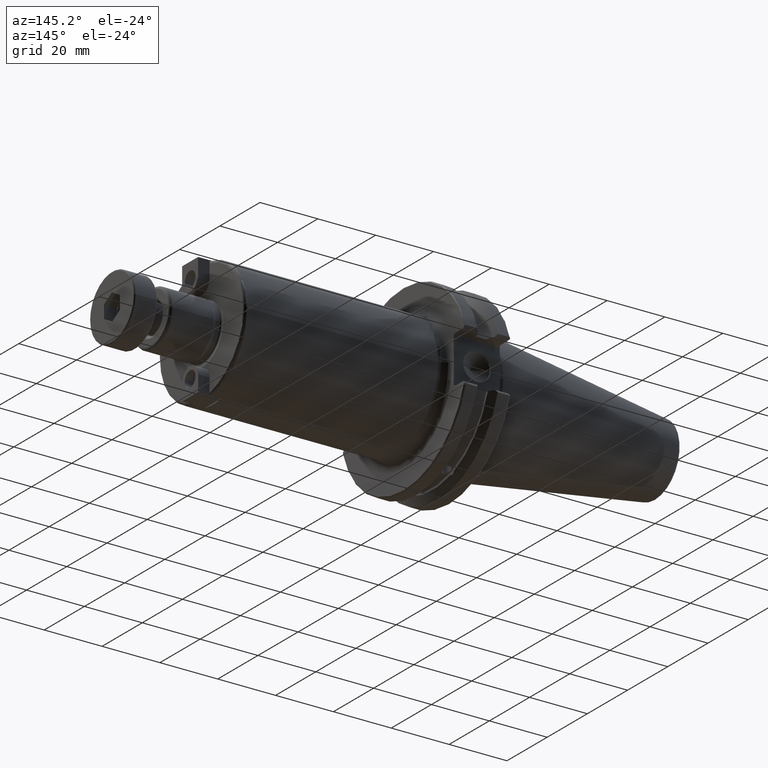
[diagram: clean part render]
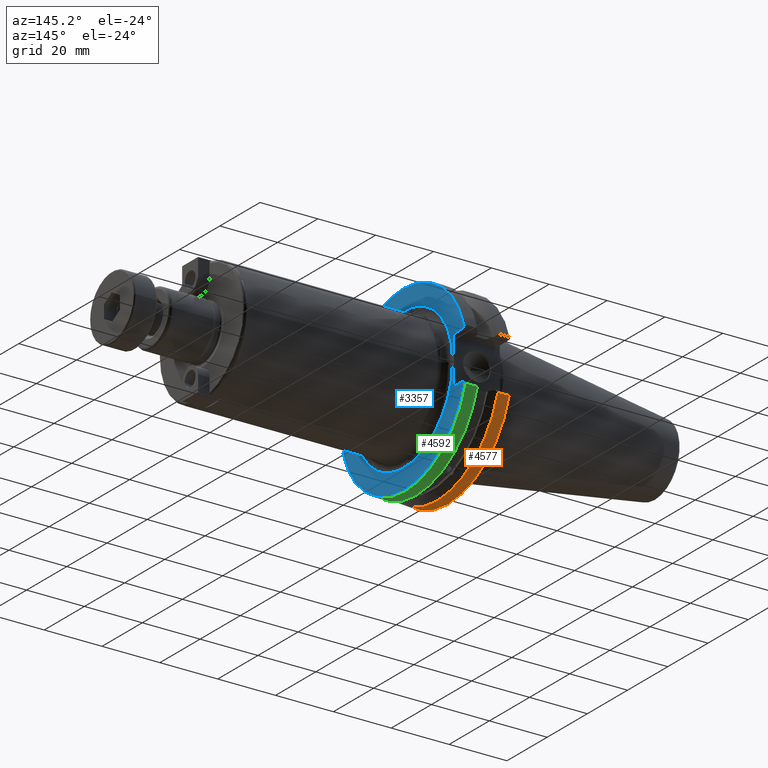
[diagram: same view with three faces highlighted in distinct colors, each labeled with its STEP entity id]
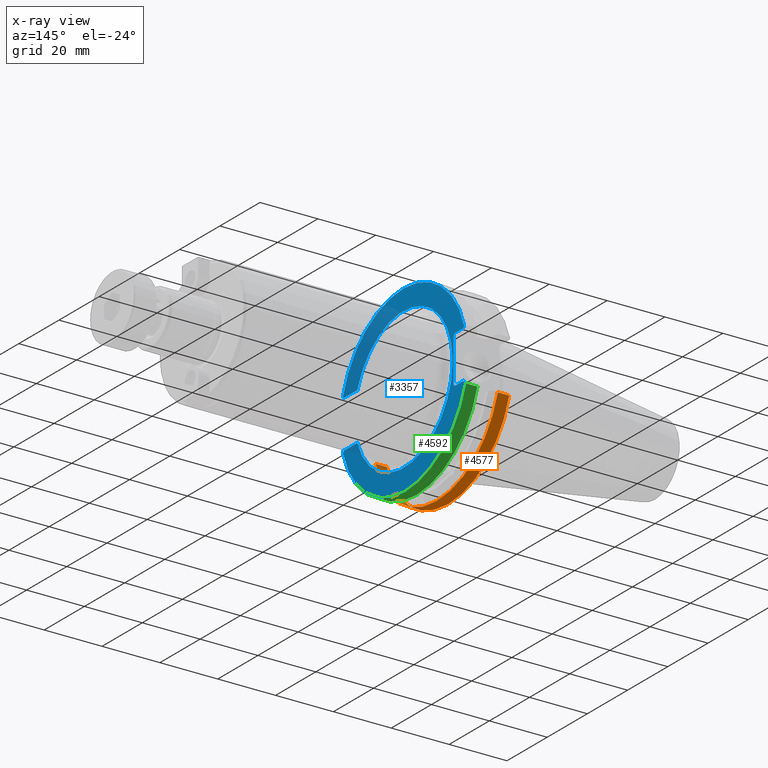
[diagram: x-ray of the same camera — body ghosted, the three highlighted faces saturated]
A machine part, auxiliary view with three faces highlighted in distinct colors.
The next image is the same camera in x-ray (body ghosted, the three faces saturated) — at least one of them is partly hidden behind the body in this view.
Their STEP definitions:

[orange] entity #4577 — the highlighted cylindrical surface (partial cylindrical patch) has radius 31.75 mm, axis along (1, 0, 0).
#561=CARTESIAN_POINT('',(2.995272033465E-1,1.197670401482E0,
-3.578904991948E-1));
#567=CARTESIAN_POINT('',(2.995272033465E-1,0.E0,0.E0));
#568=DIRECTION('',(-1.E0,0.E0,0.E0));
#569=DIRECTION('',(0.E0,9.581363211856E-1,-2.863123993559E-1));
#570=AXIS2_PLACEMENT_3D('',#567,#568,#569);
#576=CARTESIAN_POINT('',(2.995272033465E-1,-1.197670401482E0,
-3.578904991948E-1));
#1598=CARTESIAN_POINT('',(1.446850393701E-1,0.E0,0.E0));
#1599=DIRECTION('',(1.E0,0.E0,0.E0));
#1600=DIRECTION('',(0.E0,-9.581363211856E-1,-2.863123993559E-1));
#1601=AXIS2_PLACEMENT_3D('',#1598,#1599,#1600);
#1629=DIRECTION('',(-1.E0,0.E0,0.E0));
#1630=VECTOR('',#1629,1.548421639764E-1);
#1631=CARTESIAN_POINT('',(2.995272033465E-1,-1.197670401482E0,
-3.578904991948E-1));
#1632=LINE('',#1631,#1630);
#1633=DIRECTION('',(1.E0,0.E0,0.E0));
#1634=VECTOR('',#1633,1.548421639764E-1);
#1635=CARTESIAN_POINT('',(1.446850393701E-1,1.197670401482E0,
-3.578904991948E-1));
#1636=LINE('',#1635,#1634);
#2222=VERTEX_POINT('',#561);
#2225=VERTEX_POINT('',#576);
#2276=CARTESIAN_POINT('',(1.446850393701E-1,1.197670401482E0,
-3.578904991948E-1));
#2277=VERTEX_POINT('',#2276);
#2278=CARTESIAN_POINT('',(1.446850393701E-1,-1.197670401482E0,
-3.578904991948E-1));
#2279=VERTEX_POINT('',#2278);
#4565=CARTESIAN_POINT('',(0.E0,0.E0,0.E0));
#4566=DIRECTION('',(1.E0,0.E0,0.E0));
#4567=DIRECTION('',(0.E0,0.E0,1.E0));
#4568=AXIS2_PLACEMENT_3D('',#4565,#4566,#4567);
#4569=CYLINDRICAL_SURFACE('',#4568,1.25E0);
#4570=ORIENTED_EDGE('',*,*,#4532,.F.);
#4572=ORIENTED_EDGE('',*,*,#4571,.F.);
#4573=ORIENTED_EDGE('',*,*,#3206,.F.);
#4574=ORIENTED_EDGE('',*,*,#4545,.F.);
#4575=EDGE_LOOP('',(#4570,#4572,#4573,#4574));
#4576=FACE_OUTER_BOUND('',#4575,.F.);
#4577=ADVANCED_FACE('',(#4576),#4569,.T.);
#571=CIRCLE('',#570,1.25E0);
#1602=CIRCLE('',#1601,1.25E0);
#3206=EDGE_CURVE('',#2222,#2225,#571,.T.);
#4532=EDGE_CURVE('',#2279,#2277,#1602,.T.);
#4545=EDGE_CURVE('',#2277,#2222,#1636,.T.);
#4571=EDGE_CURVE('',#2225,#2279,#1632,.T.);

[blue] entity #3357 — the highlighted planar face has unit normal (-1, 0, 0).
#674=DIRECTION('',(0.E0,1.E0,0.E0));
#675=VECTOR('',#674,2.618162508981E-1);
#676=CARTESIAN_POINT('',(7.509842519685E-1,-1.171265069796E0,
-3.224409448819E-1));
#677=LINE('',#676,#675);
#694=CARTESIAN_POINT('',(7.509842519685E-1,0.E0,0.E0));
#695=DIRECTION('',(1.E0,0.E0,0.E0));
#696=DIRECTION('',(0.E0,-9.429949431790E-1,-3.328070569247E-1));
#697=AXIS2_PLACEMENT_3D('',#694,#695,#696);
#699=CARTESIAN_POINT('',(7.509842519685E-1,0.E0,0.E0));
#700=DIRECTION('',(1.E0,0.E0,0.E0));
#701=DIRECTION('',(0.E0,1.E0,0.E0));
#702=AXIS2_PLACEMENT_3D('',#699,#700,#701);
#1182=DIRECTION('',(0.E0,-7.080677912790E-1,7.061444632320E-1));
#1183=VECTOR('',#1182,3.223760960722E-3);
#1184=CARTESIAN_POINT('',(7.509842519685E-1,-9.071661775946E-1,
3.201645039287E-1));
#1185=LINE('',#1184,#1183);
#1202=DIRECTION('',(0.E0,1.E0,0.E0));
#1203=VECTOR('',#1202,2.618162508981E-1);
#1204=CARTESIAN_POINT('',(7.509842519685E-1,-1.171265069796E0,
3.224409448819E-1));
#1205=LINE('',#1204,#1203);
#1280=DIRECTION('',(0.E0,0.E0,-1.E0));
#1281=VECTOR('',#1280,6.055118110236E-1);
#1282=CARTESIAN_POINT('',(7.509842519685E-1,9.842519685039E-1,
3.027559055118E-1));
#1283=LINE('',#1282,#1281);
#1322=DIRECTION('',(0.E0,7.071067811865E-1,7.071067811865E-1));
#1323=VECTOR('',#1322,2.783884965301E-2);
#1324=CARTESIAN_POINT('',(7.509842519685E-1,9.842519685039E-1,
3.027559055118E-1));
#1325=LINE('',#1324,#1323);
#1330=DIRECTION('',(0.E0,1.E0,0.E0));
#1331=VECTOR('',#1330,1.673280619218E-1);
#1332=CARTESIAN_POINT('',(7.509842519685E-1,1.003937007874E0,
3.224409448819E-1));
#1333=LINE('',#1332,#1331);
#1350=DIRECTION('',(0.E0,5.973640433790E-1,8.019701987468E-1));
#1351=VECTOR('',#1350,2.743060784158E-2);
#1352=CARTESIAN_POINT('',(7.509842519685E-1,1.171265069796E0,
3.224409448819E-1));
#1353=LINE('',#1352,#1351);
#1361=CARTESIAN_POINT('',(7.509842519685E-1,0.E0,0.E0));
#1362=DIRECTION('',(1.E0,0.E0,0.E0));
#1363=DIRECTION('',(0.E0,9.604246720989E-1,2.785398521286E-1));
#1364=AXIS2_PLACEMENT_3D('',#1361,#1362,#1363);
#1383=DIRECTION('',(0.E0,5.973640433790E-1,-8.019701987468E-1));
#1384=VECTOR('',#1383,2.743060784159E-2);
#1385=CARTESIAN_POINT('',(7.509842519685E-1,-1.187651128608E0,
3.444394749044E-1));
#1386=LINE('',#1385,#1384);
#1545=DIRECTION('',(0.E0,1.E0,0.E0));
#1546=VECTOR('',#1545,1.673280619218E-1);
#1547=CARTESIAN_POINT('',(7.509842519685E-1,1.003937007874E0,
-3.224409448819E-1));
#1548=LINE('',#1547,#1546);
#1565=DIRECTION('',(0.E0,7.071067811865E-1,-7.071067811865E-1));
#1566=VECTOR('',#1565,2.783884965301E-2);
#1567=CARTESIAN_POINT('',(7.509842519685E-1,9.842519685039E-1,
-3.027559055118E-1));
#1568=LINE('',#1567,#1566);
#1697=DIRECTION('',(0.E0,-7.075623190160E-1,-7.066509496977E-1));
#1698=VECTOR('',#1697,3.227333670067E-3);
#1699=CARTESIAN_POINT('',(7.509842519685E-1,-9.071652792018E-1,
-3.201603464789E-1));
#1700=LINE('',#1699,#1698);
#1710=CARTESIAN_POINT('',(7.509842519685E-1,0.E0,0.E0));
#1711=DIRECTION('',(1.E0,0.E0,0.E0));
#1712=DIRECTION('',(0.E0,-9.604246720989E-1,-2.785398521286E-1));
#1713=AXIS2_PLACEMENT_3D('',#1710,#1711,#1712);
#1732=DIRECTION('',(0.E0,-5.973640433790E-1,8.019701987468E-1));
#1733=VECTOR('',#1732,2.743060784159E-2);
#1734=CARTESIAN_POINT('',(7.509842519685E-1,1.187651128608E0,
-3.444394749044E-1));
#1735=LINE('',#1734,#1733);
#1743=DIRECTION('',(0.E0,-5.973640433789E-1,-8.019701987468E-1));
#1744=VECTOR('',#1743,2.743060784159E-2);
#1745=CARTESIAN_POINT('',(7.509842519685E-1,-1.171265069796E0,
-3.224409448819E-1));
#1746=LINE('',#1745,#1744);
#2456=CARTESIAN_POINT('',(7.509842519685E-1,9.842519685039E-1,
3.027559055118E-1));
#2457=CARTESIAN_POINT('',(7.509842519685E-1,9.842519685039E-1,
-3.027559055118E-1));
#2458=VERTEX_POINT('',#2456);
#2459=VERTEX_POINT('',#2457);
#2460=CARTESIAN_POINT('',(7.509842519685E-1,1.003937007874E0,
3.224409448819E-1));
#2461=CARTESIAN_POINT('',(7.509842519685E-1,1.171265069796E0,
3.224409448819E-1));
#2462=VERTEX_POINT('',#2460);
#2463=VERTEX_POINT('',#2461);
#2464=CARTESIAN_POINT('',(7.509842519685E-1,1.003937007874E0,
-3.224409448819E-1));
#2465=CARTESIAN_POINT('',(7.509842519685E-1,1.171265069796E0,
-3.224409448819E-1));
#2466=VERTEX_POINT('',#2464);
#2467=VERTEX_POINT('',#2465);
#2468=CARTESIAN_POINT('',(7.509842519685E-1,-1.171265069796E0,
3.224409448819E-1));
#2469=CARTESIAN_POINT('',(7.509842519685E-1,-9.094488188976E-1,
3.224409448819E-1));
#2470=VERTEX_POINT('',#2468);
#2471=VERTEX_POINT('',#2469);
#2472=CARTESIAN_POINT('',(7.509842519685E-1,-1.171265069796E0,
-3.224409448819E-1));
#2473=CARTESIAN_POINT('',(7.509842519685E-1,-9.094488188976E-1,
-3.224409448819E-1));
#2474=VERTEX_POINT('',#2472);
#2475=VERTEX_POINT('',#2473);
#2476=CARTESIAN_POINT('',(7.509842519685E-1,1.187651128608E0,
3.444394749044E-1));
#2477=VERTEX_POINT('',#2476);
#2478=CARTESIAN_POINT('',(7.509842519685E-1,1.187651128608E0,
-3.444394749044E-1));
#2479=VERTEX_POINT('',#2478);
#2480=CARTESIAN_POINT('',(7.509842519685E-1,-1.187651128608E0,
3.444394749044E-1));
#2481=VERTEX_POINT('',#2480);
#2482=CARTESIAN_POINT('',(7.509842519685E-1,-1.187651128608E0,
-3.444394749044E-1));
#2483=VERTEX_POINT('',#2482);
#2557=CARTESIAN_POINT('',(7.509842519685E-1,-9.071611353382E-1,
-3.201603887615E-1));
#2558=CARTESIAN_POINT('',(7.509842519685E-1,9.62E-1,0.E0));
#2559=VERTEX_POINT('',#2557);
#2560=VERTEX_POINT('',#2558);
#2561=CARTESIAN_POINT('',(7.509842519685E-1,-9.071600700851E-1,
3.201634070957E-1));
#2562=VERTEX_POINT('',#2561);
#3317=CARTESIAN_POINT('',(7.509842519685E-1,-1.968503937008E0,
-1.968503937008E0));
#3318=DIRECTION('',(-1.E0,0.E0,0.E0));
#3319=DIRECTION('',(0.E0,0.E0,1.E0));
#3320=AXIS2_PLACEMENT_3D('',#3317,#3318,#3319);
#3321=PLANE('',#3320);
#3323=ORIENTED_EDGE('',*,*,#3322,.T.);
#3325=ORIENTED_EDGE('',*,*,#3324,.T.);
#3327=ORIENTED_EDGE('',*,*,#3326,.T.);
#3329=ORIENTED_EDGE('',*,*,#3328,.F.);
#3331=ORIENTED_EDGE('',*,*,#3330,.F.);
#3333=ORIENTED_EDGE('',*,*,#3332,.F.);
#3335=ORIENTED_EDGE('',*,*,#3334,.F.);
#3337=ORIENTED_EDGE('',*,*,#3336,.F.);
#3339=ORIENTED_EDGE('',*,*,#3338,.F.);
#3341=ORIENTED_EDGE('',*,*,#3340,.T.);
#3343=ORIENTED_EDGE('',*,*,#3342,.T.);
#3345=ORIENTED_EDGE('',*,*,#3344,.T.);
#3347=ORIENTED_EDGE('',*,*,#3346,.F.);
#3349=ORIENTED_EDGE('',*,*,#3348,.F.);
#3351=ORIENTED_EDGE('',*,*,#3350,.F.);
#3352=ORIENTED_EDGE('',*,*,#3297,.T.);
#3354=ORIENTED_EDGE('',*,*,#3353,.F.);
#3355=EDGE_LOOP('',(#3323,#3325,#3327,#3329,#3331,#3333,#3335,#3337,#3339,#3341,
#3343,#3345,#3347,#3349,#3351,#3352,#3354));
#3356=FACE_OUTER_BOUND('',#3355,.F.);
#3357=ADVANCED_FACE('',(#3356),#3321,.F.);
#698=CIRCLE('',#697,9.62E-1);
#703=CIRCLE('',#702,9.62E-1);
#1365=CIRCLE('',#1364,1.236589566169E0);
#1714=CIRCLE('',#1713,1.236589566169E0);
#3297=EDGE_CURVE('',#2474,#2475,#677,.T.);
#3322=EDGE_CURVE('',#2559,#2560,#698,.T.);
#3324=EDGE_CURVE('',#2560,#2562,#703,.T.);
#3326=EDGE_CURVE('',#2562,#2471,#1185,.T.);
#3328=EDGE_CURVE('',#2470,#2471,#1205,.T.);
#3330=EDGE_CURVE('',#2481,#2470,#1386,.T.);
#3332=EDGE_CURVE('',#2477,#2481,#1365,.T.);
#3334=EDGE_CURVE('',#2463,#2477,#1353,.T.);
#3336=EDGE_CURVE('',#2462,#2463,#1333,.T.);
#3338=EDGE_CURVE('',#2458,#2462,#1325,.T.);
#3340=EDGE_CURVE('',#2458,#2459,#1283,.T.);
#3342=EDGE_CURVE('',#2459,#2466,#1568,.T.);
#3344=EDGE_CURVE('',#2466,#2467,#1548,.T.);
#3346=EDGE_CURVE('',#2479,#2467,#1735,.T.);
#3348=EDGE_CURVE('',#2483,#2479,#1714,.T.);
#3350=EDGE_CURVE('',#2474,#2483,#1746,.T.);
#3353=EDGE_CURVE('',#2559,#2475,#1700,.T.);

[green] entity #4592 — the highlighted cylindrical surface (partial cylindrical patch) has radius 31.75 mm, axis along (1, 0, 0).
#1418=CARTESIAN_POINT('',(5.771735840551E-1,-1.197670401482E0,
-3.578904991948E-1));
#1424=CARTESIAN_POINT('',(5.771735840551E-1,0.E0,0.E0));
#1425=DIRECTION('',(1.E0,0.E0,0.E0));
#1426=DIRECTION('',(0.E0,-9.581363211856E-1,-2.863123993559E-1));
#1427=AXIS2_PLACEMENT_3D('',#1424,#1425,#1426);
#1433=CARTESIAN_POINT('',(5.771735840551E-1,1.197670401482E0,
-3.578904991948E-1));
#1637=DIRECTION('',(1.E0,0.E0,0.E0));
#1638=VECTOR('',#1637,1.541256285433E-1);
#1639=CARTESIAN_POINT('',(5.771735840551E-1,1.197670401482E0,
-3.578904991948E-1));
#1640=LINE('',#1639,#1638);
#1641=DIRECTION('',(-1.E0,0.E0,0.E0));
#1642=VECTOR('',#1641,1.541256285433E-1);
#1643=CARTESIAN_POINT('',(7.312992125984E-1,-1.197670401482E0,
-3.578904991948E-1));
#1644=LINE('',#1643,#1642);
#1705=CARTESIAN_POINT('',(7.312992125984E-1,0.E0,0.E0));
#1706=DIRECTION('',(-1.E0,0.E0,0.E0));
#1707=DIRECTION('',(0.E0,9.581363211856E-1,-2.863123993559E-1));
#1708=AXIS2_PLACEMENT_3D('',#1705,#1706,#1707);
#2221=VERTEX_POINT('',#1433);
#2230=VERTEX_POINT('',#1418);
#2284=CARTESIAN_POINT('',(7.312992125984E-1,1.197670401482E0,
-3.578904991948E-1));
#2285=VERTEX_POINT('',#2284);
#2288=CARTESIAN_POINT('',(7.312992125984E-1,-1.197670401482E0,
-3.578904991948E-1));
#2289=VERTEX_POINT('',#2288);
#4578=CARTESIAN_POINT('',(0.E0,0.E0,0.E0));
#4579=DIRECTION('',(1.E0,0.E0,0.E0));
#4580=DIRECTION('',(0.E0,0.E0,1.E0));
#4581=AXIS2_PLACEMENT_3D('',#4578,#4579,#4580);
#4582=CYLINDRICAL_SURFACE('',#4581,1.25E0);
#4584=ORIENTED_EDGE('',*,*,#4583,.F.);
#4586=ORIENTED_EDGE('',*,*,#4585,.F.);
#4587=ORIENTED_EDGE('',*,*,#4345,.F.);
#4589=ORIENTED_EDGE('',*,*,#4588,.F.);
#4590=EDGE_LOOP('',(#4584,#4586,#4587,#4589));
#4591=FACE_OUTER_BOUND('',#4590,.F.);
#4592=ADVANCED_FACE('',(#4591),#4582,.T.);
#1428=CIRCLE('',#1427,1.25E0);
#1709=CIRCLE('',#1708,1.25E0);
#4345=EDGE_CURVE('',#2230,#2221,#1428,.T.);
#4583=EDGE_CURVE('',#2285,#2289,#1709,.T.);
#4585=EDGE_CURVE('',#2221,#2285,#1640,.T.);
#4588=EDGE_CURVE('',#2289,#2230,#1644,.T.);